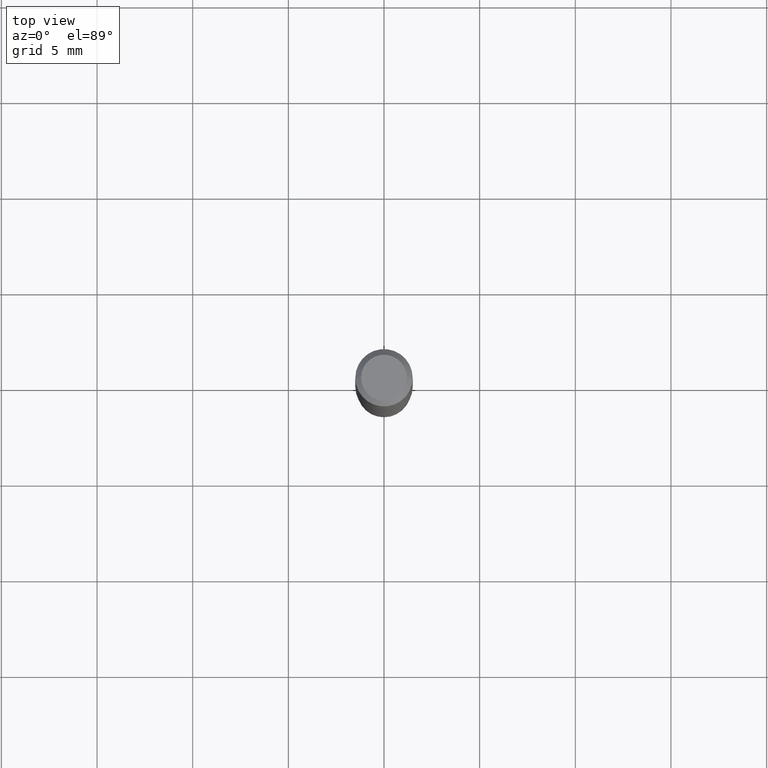
[diagram: clean part render]
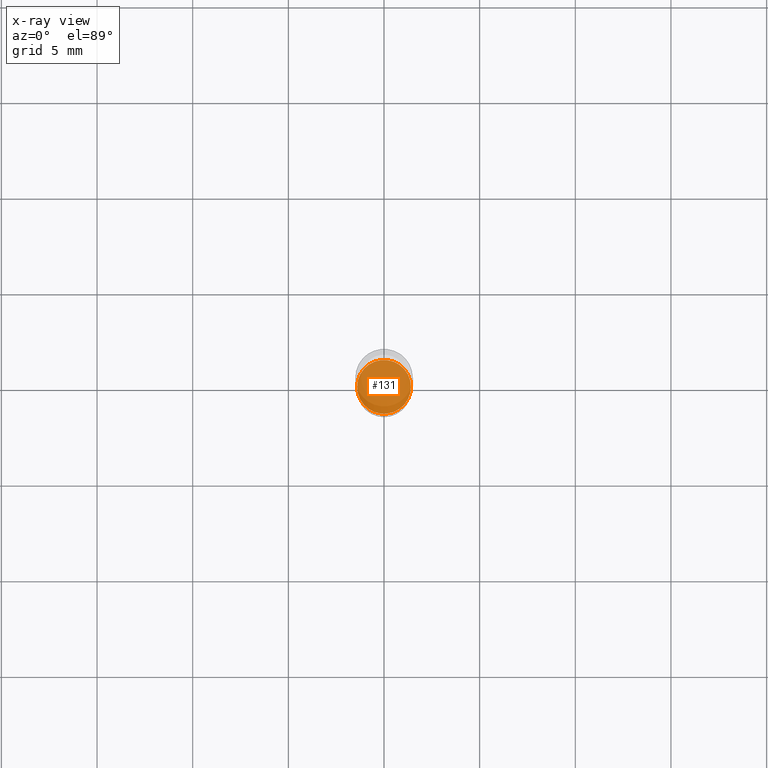
[diagram: x-ray — body ghosted, one internal face saturated and labeled with its STEP entity id]
A machine part, top view, then the same camera in x-ray: the body is ghosted and one INTERNAL B-rep face — a face not visible from any outside direction — is saturated and labeled: STEP entity #131.
In plain terms, the highlighted planar face has unit normal (-0, 0, 1).
Its self-contained STEP definition (entity closure, byte-faithful):
#3 = DIRECTION ( 'NONE',  ( -2.445468806185136597E-29, 3.491481338843145583E-15, 1.000000000000000000 ) ) ;
#12 = CARTESIAN_POINT ( 'NONE',  ( 7.921692473802966867E-30, -6.519989167480732289E-15, -1.094500000000000028 ) ) ;
#28 = EDGE_CURVE ( 'NONE', #485, #29, #135, .T. ) ;
#29 = VERTEX_POINT ( 'NONE', #110 ) ;
#110 = CARTESIAN_POINT ( 'NONE',  ( -0.05539999999999999786, -3.425136422578616035E-15, -1.094500000000000028 ) ) ;
#121 = EDGE_CURVE ( 'NONE', #29, #485, #361, .T. ) ;
#131 = ADVANCED_FACE ( 'NONE', ( #310 ), #192, .F. ) ;
#135 = CIRCLE ( 'NONE', #352, 0.05539999999999999786 ) ;
#148 = DIRECTION ( 'NONE',  ( -2.445468806185136597E-29, 3.491481338843145583E-15, 1.000000000000000000 ) ) ;
#163 = CARTESIAN_POINT ( 'NONE',  ( 2.676565608369632355E-29, -3.821426325363822773E-15, -1.094500000000000028 ) ) ;
#192 = PLANE ( 'NONE',  #207 ) ;
#196 = CARTESIAN_POINT ( 'NONE',  ( 0.05539999999999999786, -4.208282457707642164E-15, -1.094500000000000028 ) ) ;
#207 = AXIS2_PLACEMENT_3D ( 'NONE', #12, #313, #459 ) ;
#279 = ORIENTED_EDGE ( 'NONE', *, *, #28, .F. ) ;
#299 = ORIENTED_EDGE ( 'NONE', *, *, #121, .F. ) ;
#304 = CARTESIAN_POINT ( 'NONE',  ( 2.676565608369632355E-29, -3.821426325363822773E-15, -1.094500000000000028 ) ) ;
#310 = FACE_OUTER_BOUND ( 'NONE', #420, .T. ) ;
#313 = DIRECTION ( 'NONE',  ( -2.438088387897960049E-29, 3.491481338843145188E-15, 1.000000000000000000 ) ) ;
#352 = AXIS2_PLACEMENT_3D ( 'NONE', #304, #148, #457 ) ;
#361 = CIRCLE ( 'NONE', #415, 0.05539999999999999786 ) ;
#415 = AXIS2_PLACEMENT_3D ( 'NONE', #163, #3, #424 ) ;
#420 = EDGE_LOOP ( 'NONE', ( #279, #299 ) ) ;
#424 = DIRECTION ( 'NONE',  ( 1.000000000000000000, -6.982962677686268288E-15, 0.000000000000000000 ) ) ;
#457 = DIRECTION ( 'NONE',  ( 1.000000000000000000, -6.982962677686268288E-15, 0.000000000000000000 ) ) ;
#459 = DIRECTION ( 'NONE',  ( 1.000000000000000000, -6.982962677686265922E-15, 4.876176775795935793E-29 ) ) ;
#485 = VERTEX_POINT ( 'NONE', #196 ) ;